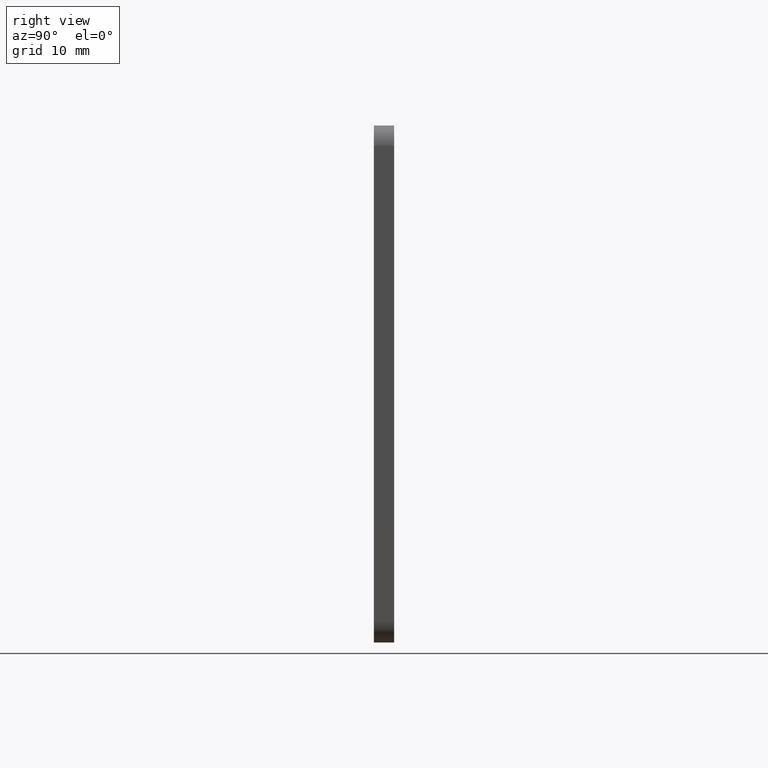
[diagram: clean part render]
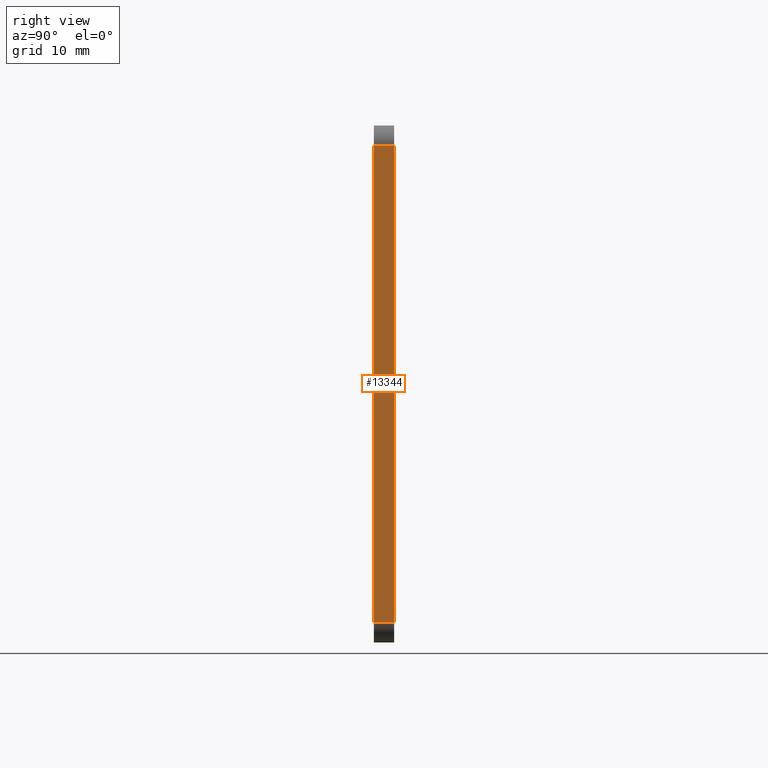
[diagram: same view with one face highlighted and labeled with its STEP entity id]
A machine part, right view. The second image highlights one B-rep face of the part: STEP entity #13344.
In plain terms, the highlighted planar face has unit normal (-1, 0, 0).
Its self-contained STEP definition (entity closure, byte-faithful):
#113 = ORIENTED_EDGE ( 'NONE', *, *, #7098, .T. ) ;
#143 = VERTEX_POINT ( 'NONE', #12886 ) ;
#233 = CARTESIAN_POINT ( 'NONE',  ( 25.49999999999999600, 0.0000000000000000000, -25.49999999999999300 ) ) ;
#890 = EDGE_CURVE ( 'NONE', #4614, #143, #2297, .T. ) ;
#1029 = AXIS2_PLACEMENT_3D ( 'NONE', #11692, #9111, #15618 ) ;
#1471 = DIRECTION ( 'NONE',  ( -2.040851148208009000E-016, -0.0000000000000000000, -1.000000000000000000 ) ) ;
#1706 = CARTESIAN_POINT ( 'NONE',  ( 25.50000000000000400, 2.000000000000000000, 23.49999999999999600 ) ) ;
#2297 = LINE ( 'NONE', #2725, #15727 ) ;
#2725 = CARTESIAN_POINT ( 'NONE',  ( 25.49999999999999600, 2.000000000000000000, -23.49999999999999300 ) ) ;
#3539 = ORIENTED_EDGE ( 'NONE', *, *, #890, .T. ) ;
#4614 = VERTEX_POINT ( 'NONE', #16476 ) ;
#5117 = EDGE_CURVE ( 'NONE', #14766, #143, #6289, .T. ) ;
#6289 = LINE ( 'NONE', #9232, #14607 ) ;
#6349 = LINE ( 'NONE', #1706, #8371 ) ;
#6640 = PLANE ( 'NONE',  #1029 ) ;
#6676 = LINE ( 'NONE', #233, #11739 ) ;
#7098 = EDGE_CURVE ( 'NONE', #14168, #4614, #6676, .T. ) ;
#7389 = CARTESIAN_POINT ( 'NONE',  ( 25.50000000000000400, 2.000000000000000000, 23.49999999999999600 ) ) ;
#8371 = VECTOR ( 'NONE', #12156, 1000.000000000000000 ) ;
#9111 = DIRECTION ( 'NONE',  ( -1.000000000000000000, 0.0000000000000000000, 2.040851148208009000E-016 ) ) ;
#9232 = CARTESIAN_POINT ( 'NONE',  ( 25.49999999999999600, 2.000000000000000000, -25.49999999999999300 ) ) ;
#9308 = DIRECTION ( 'NONE',  ( -0.0000000000000000000, 1.000000000000000000, -0.0000000000000000000 ) ) ;
#10004 = FACE_OUTER_BOUND ( 'NONE', #15587, .T. ) ;
#10040 = ORIENTED_EDGE ( 'NONE', *, *, #12498, .T. ) ;
#11282 = ORIENTED_EDGE ( 'NONE', *, *, #5117, .F. ) ;
#11692 = CARTESIAN_POINT ( 'NONE',  ( 25.49999999999999600, 2.000000000000000000, -25.49999999999999300 ) ) ;
#11739 = VECTOR ( 'NONE', #13204, 1000.000000000000000 ) ;
#12156 = DIRECTION ( 'NONE',  ( 0.0000000000000000000, -1.000000000000000000, 0.0000000000000000000 ) ) ;
#12498 = EDGE_CURVE ( 'NONE', #14766, #14168, #6349, .T. ) ;
#12886 = CARTESIAN_POINT ( 'NONE',  ( 25.49999999999999600, 2.000000000000000000, -23.49999999999999300 ) ) ;
#13204 = DIRECTION ( 'NONE',  ( -2.040851148208009000E-016, -0.0000000000000000000, -1.000000000000000000 ) ) ;
#13344 = ADVANCED_FACE ( 'NONE', ( #10004 ), #6640, .F. ) ;
#14168 = VERTEX_POINT ( 'NONE', #14704 ) ;
#14607 = VECTOR ( 'NONE', #1471, 1000.000000000000000 ) ;
#14704 = CARTESIAN_POINT ( 'NONE',  ( 25.50000000000000400, 0.0000000000000000000, 23.49999999999999600 ) ) ;
#14766 = VERTEX_POINT ( 'NONE', #7389 ) ;
#15587 = EDGE_LOOP ( 'NONE', ( #113, #3539, #11282, #10040 ) ) ;
#15618 = DIRECTION ( 'NONE',  ( 2.040851148208009000E-016, 0.0000000000000000000, 1.000000000000000000 ) ) ;
#15727 = VECTOR ( 'NONE', #9308, 1000.000000000000000 ) ;
#16476 = CARTESIAN_POINT ( 'NONE',  ( 25.49999999999999600, 0.0000000000000000000, -23.49999999999999300 ) ) ;